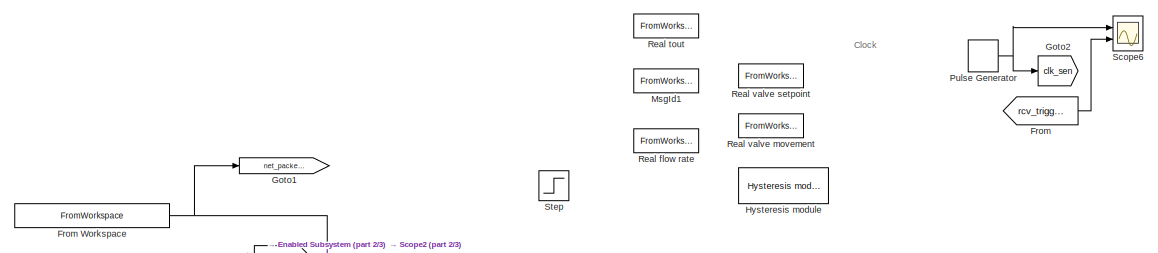
[diagram: root canvas - part 1/3, top center region]
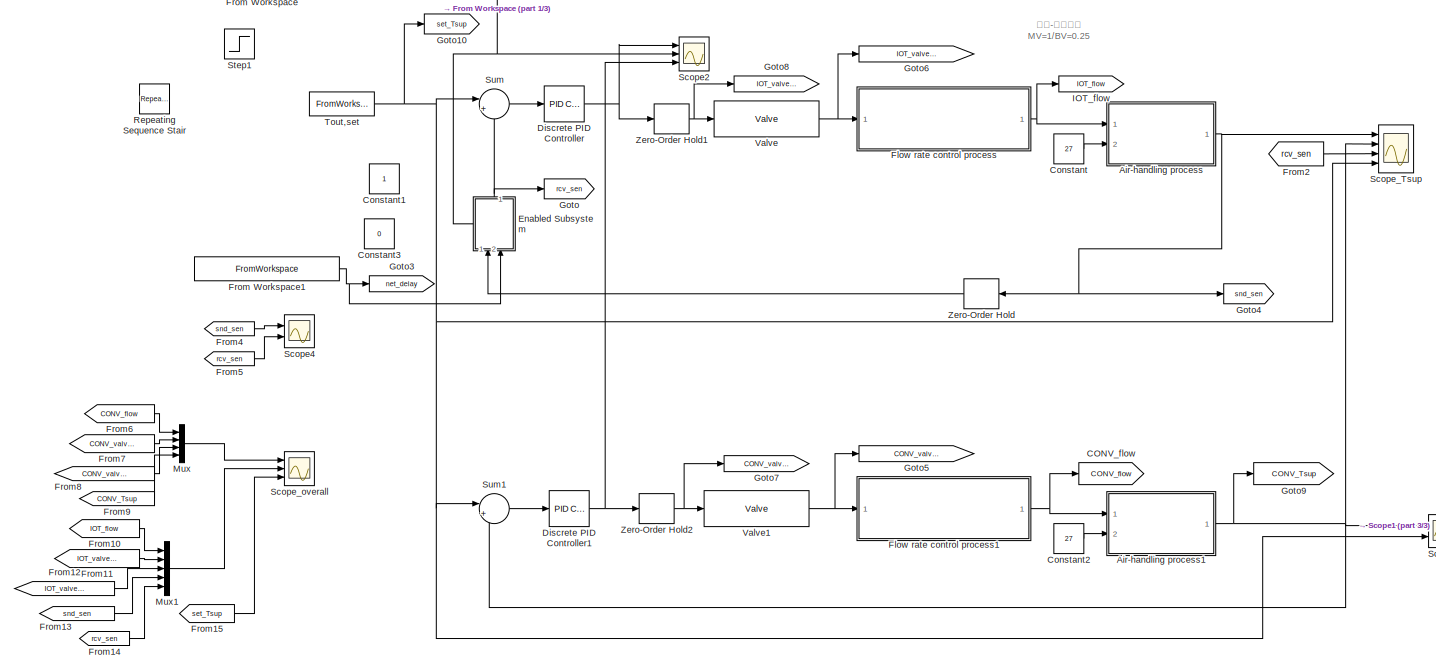
[diagram: root canvas - part 2/3, full width, middle band]
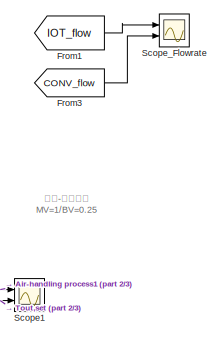
[diagram: root canvas - part 3/3, bottom right region]
MODEL slx_790681284392
KIND model
CONFIG AbsTol = auto
CONFIG EnableMultiTasking = off
CONFIG FixedStep = auto
CONFIG MaxStep = auto
CONFIG MinStep = auto
CONFIG RelTol = 1e-3
CONFIG SampleTimeConstraint = Unconstrained
CONFIG SolverName = VariableStepAuto
CONFIG StartTime = 0.0
CONFIG StopTime = 7200
WORKSPACE source: mxarray member
WORKSPACE G_sup_tsp: Simulink.Signal (value not decoded)
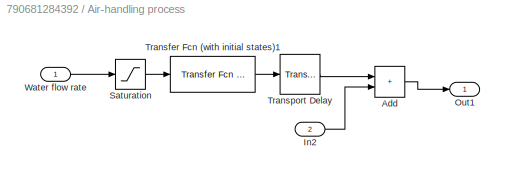
BLOCK [SubSystem] Air-handling process
  Ports = [2, 1]
  RequestExecContextInheritance = off
BLOCK [Sum] Air-handling process/Add
  IconShape = rectangular
  Ports = [2, 1]
BLOCK [Inport] Air-handling process/In2
  Port = 2
BLOCK [Outport] Air-handling process/Out1
BLOCK [Saturate] Air-handling process/Saturation
  LowerLimit = 0
  UpperLimit = 0.25
BLOCK [Reference] Air-handling process/Transfer Fcn (with initial states)1  REF=simulink_extras/Additional
Linear/Transfer Fcn
(with initial states)
  Ports = [1, 1]
  SourceBlock = simulink_extras/Additional\nLinear/Transfer Fcn\n(with initial states)
  SourceProductBaseCode = SL
  SourceType = Transfer Function with Initial States
BLOCK [TransportDelay] Air-handling process/Transport Delay
  DelayTime = 0
  Ports = [1, 1]
BLOCK [Inport] Air-handling process/Water flow rate
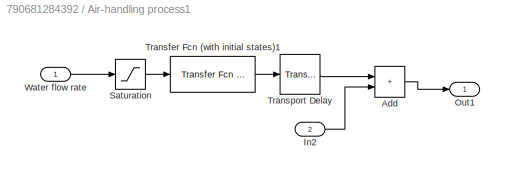
BLOCK [SubSystem] Air-handling process1
  Ports = [2, 1]
  RequestExecContextInheritance = off
BLOCK [Sum] Air-handling process1/Add
  IconShape = rectangular
  Ports = [2, 1]
BLOCK [Inport] Air-handling process1/In2
  Port = 2
BLOCK [Outport] Air-handling process1/Out1
BLOCK [Saturate] Air-handling process1/Saturation
  LowerLimit = 0
  UpperLimit = 0.25
BLOCK [Reference] Air-handling process1/Transfer Fcn (with initial states)1  REF=simulink_extras/Additional
Linear/Transfer Fcn
(with initial states)
  Ports = [1, 1]
  SourceBlock = simulink_extras/Additional\nLinear/Transfer Fcn\n(with initial states)
  SourceProductBaseCode = SL
  SourceType = Transfer Function with Initial States
BLOCK [TransportDelay] Air-handling process1/Transport Delay
  DelayTime = 0
  Ports = [1, 1]
BLOCK [Inport] Air-handling process1/Water flow rate
BLOCK [Goto] CONV_flow
  GotoTag = CONV_flow
BLOCK [Constant] Constant
  Value = 27
BLOCK [Constant] Constant1
BLOCK [Constant] Constant2
  Value = 27
BLOCK [Constant] Constant3
  Value = 0
BLOCK [Reference] Discrete PID Controller  REF=slpidlib/PID Controller
  Ports = [1, 1]
  SourceBlock = slpidlib/PID Controller
  SourceProductBaseCode = SL
  SourceType = PID 1dof
BLOCK [Reference] Discrete PID Controller1  REF=slpidlib/PID Controller
  Ports = [1, 1]
  SourceBlock = slpidlib/PID Controller
  SourceProductBaseCode = SL
  SourceType = PID 1dof
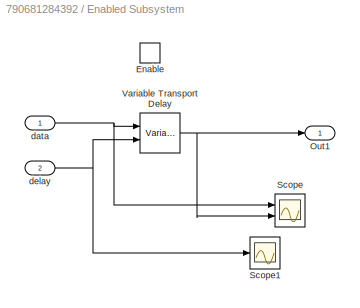
BLOCK [SubSystem] Enabled Subsystem
  NameLocation = right
  Ports = [2, 1, 1]
  RequestExecContextInheritance = off
  TreatAsAtomicUnit = on
BLOCK [EnablePort] Enabled Subsystem/Enable
  Ports = []
BLOCK [Outport] Enabled Subsystem/Out1
BLOCK [Scope] Enabled Subsystem/Scope
  Floating = off
  NumInputPorts = 2
  Ports = [2]
  ScopeSpecificationString = Simulink.scopes.TimeScopeBlockCfg('CurrentConfiguration', extmgr.ConfigurationSet(extmgr.Configuration('Core','General UI',true),extmgr.Configuration('Core','Source UI',true),extmgr.Configuration('Sources','WiredSimulink',true,'DataLoggingVariableName','ScopeData1'),extmgr.Configuration('Visuals','Time Domain',true,'SerializedDisplays',{struct('MinYLimReal','-6.61129','MaxYLimReal','59.50163','YLa...<+1798ch>
BLOCK [Scope] Enabled Subsystem/Scope1
  Floating = off
  NumInputPorts = 1
  Ports = [1]
  ScopeSpecificationString = Simulink.scopes.TimeScopeBlockCfg('CurrentConfiguration', extmgr.ConfigurationSet(extmgr.Configuration('Core','General UI',true),extmgr.Configuration('Core','Source UI',true),extmgr.Configuration('Sources','WiredSimulink',true,'DataLoggingVariableName','ScopeData2'),extmgr.Configuration('Visuals','Time Domain',true,'SerializedDisplays',{struct('MinYLimReal','-0.07868','MaxYLimReal','0.65','YLabelR...<+1461ch>
BLOCK [VariableTransportDelay] Enabled Subsystem/Variable Transport Delay
  MaximumDelay = 10
  Ports = [2, 1]
  ZeroDelay = on
BLOCK [Inport] Enabled Subsystem/data
BLOCK [Inport] Enabled Subsystem/delay
  Port = 2
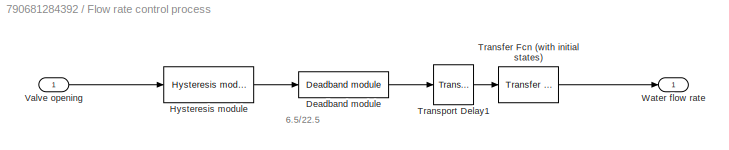
BLOCK [SubSystem] Flow rate control process
  Ports = [1, 1]
  RequestExecContextInheritance = off
BLOCK [Reference] Flow rate control process/Deadband module  REF=IMT_Library/Deadband module
  Ports = [1, 1]
  SourceBlock = IMT_Library/Deadband module
  SourceProductName = Imitation
BLOCK [Reference] Flow rate control process/Hysteresis module  REF=IMT_Library/Hysteresis module
  Ports = [1, 1]
  SourceBlock = IMT_Library/Hysteresis module
  SourceProductName = Imitation
BLOCK [Reference] Flow rate control process/Transfer Fcn (with initial states)  REF=simulink_extras/Additional
Linear/Transfer Fcn
(with initial states)
  Ports = [1, 1]
  SourceBlock = simulink_extras/Additional\nLinear/Transfer Fcn\n(with initial states)
  SourceProductBaseCode = SL
  SourceType = Transfer Function with Initial States
BLOCK [TransportDelay] Flow rate control process/Transport Delay1
  DelayTime = 3
  Ports = [1, 1]
BLOCK [Inport] Flow rate control process/Valve opening
BLOCK [Outport] Flow rate control process/Water flow rate
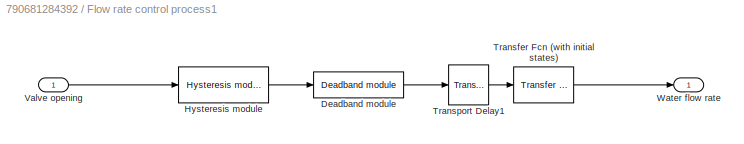
BLOCK [SubSystem] Flow rate control process1
  Ports = [1, 1]
  RequestExecContextInheritance = off
BLOCK [Reference] Flow rate control process1/Deadband module  REF=IMT_Library/Deadband module
  Ports = [1, 1]
  SourceBlock = IMT_Library/Deadband module
  SourceProductName = Imitation
BLOCK [Reference] Flow rate control process1/Hysteresis module  REF=IMT_Library/Hysteresis module
  Ports = [1, 1]
  SourceBlock = IMT_Library/Hysteresis module
  SourceProductName = Imitation
BLOCK [Reference] Flow rate control process1/Transfer Fcn (with initial states)  REF=simulink_extras/Additional
Linear/Transfer Fcn
(with initial states)
  Ports = [1, 1]
  SourceBlock = simulink_extras/Additional\nLinear/Transfer Fcn\n(with initial states)
  SourceProductBaseCode = SL
  SourceType = Transfer Function with Initial States
BLOCK [TransportDelay] Flow rate control process1/Transport Delay1
  DelayTime = 3
  Ports = [1, 1]
BLOCK [Inport] Flow rate control process1/Valve opening
BLOCK [Outport] Flow rate control process1/Water flow rate
BLOCK [From] From
  GotoTag = rcv_trigger
BLOCK [FromWorkspace] From Workspace
  SampleTime = 1
  VariableName = networkSchedule(:,[1,2])
BLOCK [FromWorkspace] From Workspace1
  SampleTime = 1
  VariableName = networkSchedule(:,[1,3])
BLOCK [From] From1
  GotoTag = IOT_flow
BLOCK [From] From10
  GotoTag = IOT_flow
BLOCK [From] From11
  GotoTag = IOT_valveSet
BLOCK [From] From12
  GotoTag = IOT_valveopening
BLOCK [From] From13
  GotoTag = snd_sen
BLOCK [From] From14
  GotoTag = rcv_sen
BLOCK [From] From15
  GotoTag = set_Tsup
BLOCK [From] From2
  GotoTag = rcv_sen
BLOCK [From] From3
  GotoTag = CONV_flow
BLOCK [From] From4
  GotoTag = snd_sen
BLOCK [From] From5
  GotoTag = rcv_sen
BLOCK [From] From6
  GotoTag = CONV_flow
BLOCK [From] From7
  GotoTag = CONV_valveSet
BLOCK [From] From8
  GotoTag = CONV_valveopening
BLOCK [From] From9
  GotoTag = CONV_Tsup
BLOCK [Goto] Goto
  GotoTag = rcv_sen
BLOCK [Goto] Goto1
  GotoTag = net_packetLoss
BLOCK [Goto] Goto10
  GotoTag = set_Tsup
BLOCK [Goto] Goto2
  GotoTag = clk_sen
BLOCK [Goto] Goto3
  GotoTag = net_delay
BLOCK [Goto] Goto4
  GotoTag = snd_sen
BLOCK [Goto] Goto5
  GotoTag = CONV_valveopening
BLOCK [Goto] Goto6
  GotoTag = IOT_valveopening
BLOCK [Goto] Goto7
  GotoTag = CONV_valveSet
BLOCK [Goto] Goto8
  GotoTag = IOT_valveSet
BLOCK [Goto] Goto9
  GotoTag = CONV_Tsup
BLOCK [Reference] Hysteresis module  REF=IMT_Library/Hysteresis module
  Ports = [1, 1]
  SourceBlock = IMT_Library/Hysteresis module
  SourceProductName = Imitation
BLOCK [Goto] IOT_flow
  GotoTag = IOT_flow
BLOCK [FromWorkspace] MsgId1
  Commented = on
  SampleTime = 1
  VariableName = testData(:,[1,1])
BLOCK [Mux] Mux
  DisplayOption = bar
  Ports = [4, 1]
BLOCK [Mux] Mux1
  DisplayOption = bar
  Inputs = 5
  Ports = [5, 1]
BLOCK [DiscretePulseGenerator] Pulse Generator
  Ports = [0, 1]
  SampleTime = 0.5
BLOCK [FromWorkspace] Real flow rate
  Commented = on
  VariableName = testData(:,[1,5])
BLOCK [FromWorkspace] Real tout
  Commented = on
  VariableName = testData(:,[1,9])
BLOCK [FromWorkspace] Real valve movement
  Commented = on
  SampleTime = 1
  VariableName = testData(:,[1,8])
BLOCK [FromWorkspace] Real valve setpoint
  Commented = on
  SampleTime = 1
  VariableName = testData(:,[1,4])
BLOCK [Reference] Repeating Sequence Stair  REF=simulink/Sources/Repeating
Sequence
Stair
  Ports = [0, 1]
  SourceBlock = simulink/Sources/Repeating\nSequence\nStair
  SourceProductBaseCode = SL
  SourceType = Repeating Sequence Stair
BLOCK [Scope] Scope1
  Floating = off
  NumInputPorts = 2
  Ports = [2]
  ScopeSpecificationString = Simulink.scopes.TimeScopeBlockCfg('CurrentConfiguration', extmgr.ConfigurationSet(extmgr.Configuration('Core','General UI',true),extmgr.Configuration('Core','Source UI',true),extmgr.Configuration('Sources','WiredSimulink',true,'DataLoggingVariableName','ScopeData1'),extmgr.Configuration('Visuals','Time Domain',true,'SerializedDisplays',{struct('MinYLimReal','23.82095','MaxYLimReal','55.61144','YLa...<+1427ch>
BLOCK [Scope] Scope2
  Floating = off
  NumInputPorts = 3
  Ports = [3]
  ScopeSpecificationString = Simulink.scopes.TimeScopeBlockCfg('CurrentConfiguration', extmgr.ConfigurationSet(extmgr.Configuration('Core','General UI',true),extmgr.Configuration('Core','Source UI',true),extmgr.Configuration('Sources','WiredSimulink',true,'DataLoggingVariableName','ScopeData1'),extmgr.Configuration('Visuals','Time Domain',true,'SerializedDisplays',{struct('MinYLimReal','-3.125','MaxYLimReal','28.125','YLabelR...<+1781ch>
BLOCK [Scope] Scope4
  Floating = off
  NumInputPorts = 2
  Ports = [2]
  ScopeSpecificationString = Simulink.scopes.TimeScopeBlockCfg('CurrentConfiguration', extmgr.ConfigurationSet(extmgr.Configuration('Core','General UI',true),extmgr.Configuration('Core','Source UI',true),extmgr.Configuration('Sources','WiredSimulink',true,'DataLoggingVariableName','ScopeData1'),extmgr.Configuration('Visuals','Time Domain',true,'SerializedDisplays',{struct('MinYLimReal','-6.57196','MaxYLimReal','59.14761','YLa...<+1786ch>
BLOCK [Scope] Scope6
  Floating = off
  NumInputPorts = 2
  Ports = [2]
  ScopeSpecificationString = Simulink.scopes.TimeScopeBlockCfg('CurrentConfiguration', extmgr.ConfigurationSet(extmgr.Configuration('Core','General UI',true),extmgr.Configuration('Core','Source UI',true),extmgr.Configuration('Sources','WiredSimulink',true,'DataLoggingVariableName','ScopeData1'),extmgr.Configuration('Visuals','Time Domain',true,'SerializedDisplays',{struct('MinYLimReal','-0.125','MaxYLimReal','1.125','YLabelRe...<+2099ch>
BLOCK [Scope] Scope_Flowrate
  Floating = off
  NumInputPorts = 2
  Ports = [2]
  ScopeSpecificationString = Simulink.scopes.TimeScopeBlockCfg('CurrentConfiguration', extmgr.ConfigurationSet(extmgr.Configuration('Core','General UI',true),extmgr.Configuration('Core','Source UI',true),extmgr.Configuration('Sources','WiredSimulink',true,'DataLoggingVariableName','ScopeData2'),extmgr.Configuration('Visuals','Time Domain',true,'SerializedDisplays',{struct('MinYLimReal','-0.05892','MaxYLimReal','0.5303','YLabe...<+1438ch>
BLOCK [Scope] Scope_Tsup
  Floating = off
  NumInputPorts = 4
  Ports = [4]
  ScopeSpecificationString = Simulink.scopes.TimeScopeBlockCfg('CurrentConfiguration', extmgr.ConfigurationSet(extmgr.Configuration('Core','General UI',true),extmgr.Configuration('Core','Source UI',true),extmgr.Configuration('Sources','WiredSimulink',true,'DataLogging',true,'DataLoggingVariableName','SystemOutput'),extmgr.Configuration('Visuals','Time Domain',true,'SerializedDisplays',{struct('MinYLimReal','-6.75','MaxYLimRea...<+1596ch>
BLOCK [Scope] Scope_overall
  Floating = off
  NumInputPorts = 3
  Ports = [3]
  ScopeSpecificationString = Simulink.scopes.TimeScopeBlockCfg('CurrentConfiguration', extmgr.ConfigurationSet(extmgr.Configuration('Core','General UI',true),extmgr.Configuration('Core','Source UI',true),extmgr.Configuration('Sources','WiredSimulink',true,'DataLoggingVariableName','ScopeOverall','DataLogging',true),extmgr.Configuration('Visuals','Time Domain',true,'SerializedDisplays',{struct('MinYLimReal','-11.52451','MaxYLi...<+1661ch>
BLOCK [Step] Step
  After = 0.31
  SampleTime = 0
  Time = 18
BLOCK [Step] Step1
  After = 45
  SampleTime = 0
BLOCK [Sum] Sum
  Inputs = |+-
  Ports = [2, 1]
BLOCK [Sum] Sum1
  Inputs = |+-
  Ports = [2, 1]
BLOCK [FromWorkspace] Tout,set
  SampleTime = 1
  VariableName = testData(:,[1,3])
BLOCK [Reference] Valve  REF=IMT_Library/Valve
  Ports = [1, 1]
  SourceBlock = IMT_Library/Valve
  SourceProductName = Imitation
BLOCK [Reference] Valve1  REF=IMT_Library/Valve
  Ports = [1, 1]
  SourceBlock = IMT_Library/Valve
  SourceProductName = Imitation
BLOCK [ZeroOrderHold] Zero-Order Hold
BLOCK [ZeroOrderHold] Zero-Order Hold1
BLOCK [ZeroOrderHold] Zero-Order Hold2
ANNOTATION (root): Clock
ANNOTATION (root): 阀门-流量过程 MV=1/BV=0.25
ANNOTATION Flow rate control process: 6.5/22.5
LINE Air-handling process/Add:1 -> Air-handling process/Out1:1
LINE Air-handling process/In2:1 -> Air-handling process/Add:2
LINE Air-handling process/Saturation:1 -> Air-handling process/Transfer Fcn (with initial states)1:1
LINE Air-handling process/Transfer Fcn (with initial states)1:1 -> Air-handling process/Transport Delay:1
LINE Air-handling process/Transport Delay:1 -> Air-handling process/Add:1
LINE Air-handling process/Water flow rate:1 -> Air-handling process/Saturation:1
LINE Air-handling process1/Add:1 -> Air-handling process1/Out1:1
LINE Air-handling process1/In2:1 -> Air-handling process1/Add:2
LINE Air-handling process1/Saturation:1 -> Air-handling process1/Transfer Fcn (with initial states)1:1
LINE Air-handling process1/Transfer Fcn (with initial states)1:1 -> Air-handling process1/Transport Delay:1
LINE Air-handling process1/Transport Delay:1 -> Air-handling process1/Add:1
LINE Air-handling process1/Water flow rate:1 -> Air-handling process1/Saturation:1
NET Air-handling process1:1 -> Goto9:1, Scope1:1, Scope_Tsup:2, Sum1:2
NET Air-handling process:1 -> Goto4:1, Scope_Tsup:1, Zero-Order Hold:1
LINE Constant2:1 -> Air-handling process1:2
LINE Constant:1 -> Air-handling process:2
NET Discrete PID Controller1:1 -> Scope2:3, Zero-Order Hold2:1
NET Discrete PID Controller:1 -> Scope2:1, Zero-Order Hold1:1
NET Enabled Subsystem/Variable Transport Delay:1 -> Enabled Subsystem/Out1:1, Enabled Subsystem/Scope:2
NET Enabled Subsystem/data:1 -> Enabled Subsystem/Scope:1, Enabled Subsystem/Variable Transport Delay:1
NET Enabled Subsystem/delay:1 -> Enabled Subsystem/Scope1:1, Enabled Subsystem/Variable Transport Delay:2
NET Enabled Subsystem:1 -> Goto:1, Sum:2
LINE Flow rate control process/Deadband module:1 -> Flow rate control process/Transport Delay1:1
LINE Flow rate control process/Hysteresis module:1 -> Flow rate control process/Deadband module:1
LINE Flow rate control process/Transfer Fcn (with initial states):1 -> Flow rate control process/Water flow rate:1
LINE Flow rate control process/Transport Delay1:1 -> Flow rate control process/Transfer Fcn (with initial states):1
LINE Flow rate control process/Valve opening:1 -> Flow rate control process/Hysteresis module:1
LINE Flow rate control process1/Deadband module:1 -> Flow rate control process1/Transport Delay1:1
LINE Flow rate control process1/Hysteresis module:1 -> Flow rate control process1/Deadband module:1
LINE Flow rate control process1/Transfer Fcn (with initial states):1 -> Flow rate control process1/Water flow rate:1
LINE Flow rate control process1/Transport Delay1:1 -> Flow rate control process1/Transfer Fcn (with initial states):1
LINE Flow rate control process1/Valve opening:1 -> Flow rate control process1/Hysteresis module:1
NET Flow rate control process1:1 -> Air-handling process1:1, CONV_flow:1
NET Flow rate control process:1 -> Air-handling process:1, IOT_flow:1
NET From Workspace1:1 -> Enabled Subsystem:2, Goto3:1
NET From Workspace:1 -> Enabled Subsystem:enable, Goto1:1, Scope2:2
LINE From10:1 -> Mux1:1
LINE From11:1 -> Mux1:2
LINE From12:1 -> Mux1:3
LINE From13:1 -> Mux1:4
LINE From14:1 -> Mux1:5
LINE From15:1 -> Scope_overall:3
LINE From1:1 -> Scope_Flowrate:1
LINE From2:1 -> Scope_Tsup:3
LINE From3:1 -> Scope_Flowrate:2
LINE From4:1 -> Scope4:1
LINE From5:1 -> Scope4:2
LINE From6:1 -> Mux:1
LINE From7:1 -> Mux:2
LINE From8:1 -> Mux:3
LINE From9:1 -> Mux:4
LINE From:1 -> Scope6:2
LINE Mux1:1 -> Scope_overall:2
LINE Mux:1 -> Scope_overall:1
NET Pulse Generator:1 -> Goto2:1, Scope6:1
LINE Sum1:1 -> Discrete PID Controller1:1
LINE Sum:1 -> Discrete PID Controller:1
NET Tout,set:1 -> Goto10:1, Scope1:2, Scope_Tsup:4, Sum1:1, Sum:1
NET Valve1:1 -> Flow rate control process1:1, Goto5:1
NET Valve:1 -> Flow rate control process:1, Goto6:1
NET Zero-Order Hold1:1 -> Goto8:1, Valve:1
NET Zero-Order Hold2:1 -> Goto7:1, Valve1:1
LINE Zero-Order Hold:1 -> Enabled Subsystem:1
note: NET lines group one-source signal fan-out (src -> all destinations, sorted); 1:1 wires keep LINE
